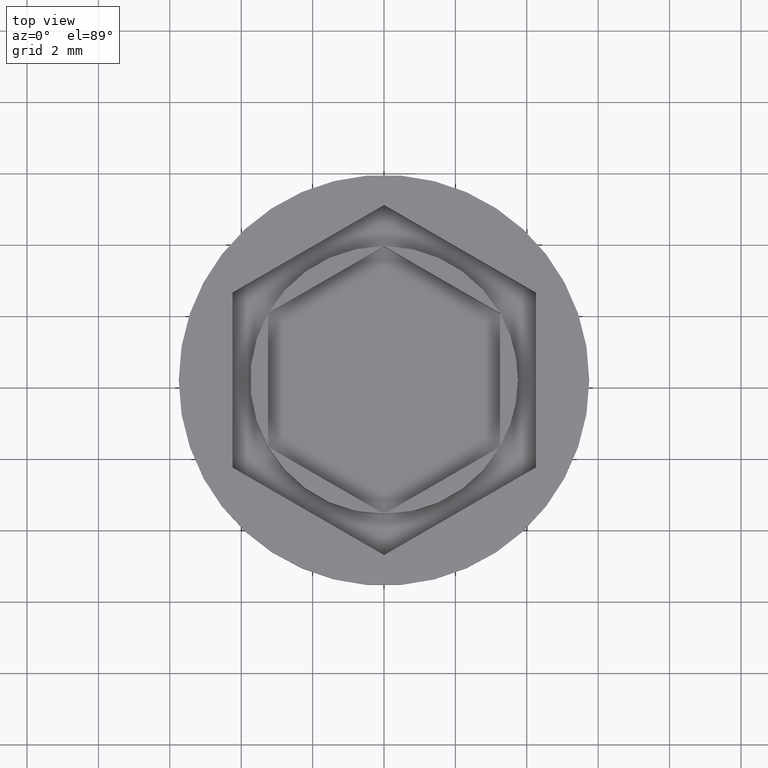
[diagram: clean part render]
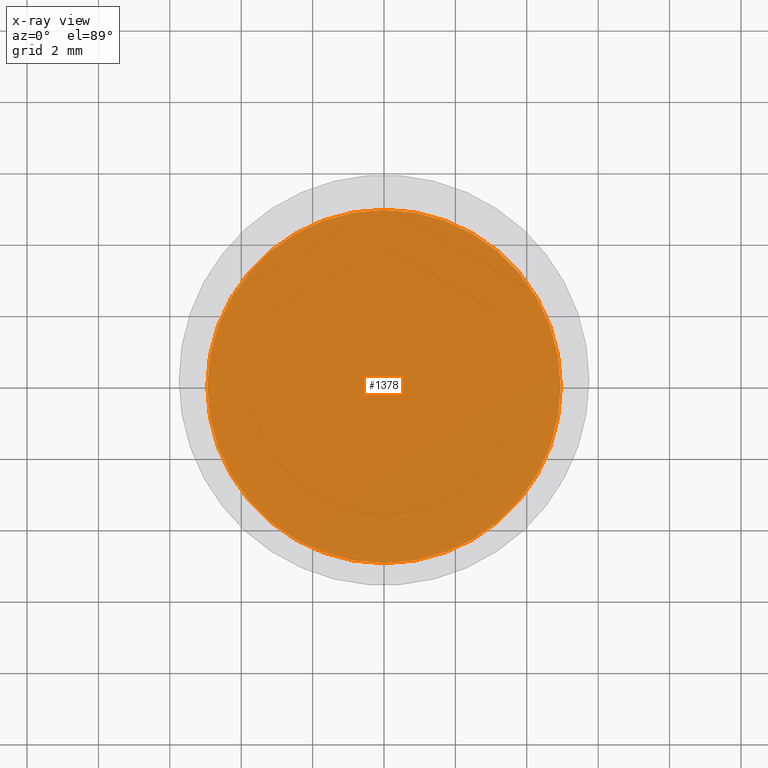
[diagram: x-ray — body ghosted, one internal face saturated and labeled with its STEP entity id]
A machine part, top view, then the same camera in x-ray: the body is ghosted and one INTERNAL B-rep face — a face not visible from any outside direction — is saturated and labeled: STEP entity #1378.
In plain terms, the highlighted planar face has unit normal (0, 0, -1).
Its self-contained STEP definition (entity closure, byte-faithful):
#8 = EDGE_CURVE ( 'NONE', #1725, #911, #746, .T. ) ;
#132 = AXIS2_PLACEMENT_3D ( 'NONE', #1994, #1708, #965 ) ;
#213 = CARTESIAN_POINT ( 'NONE',  ( 4.950000000000001066, 6.245698675651502811E-16, -10.50000000000000000 ) ) ;
#224 = EDGE_CURVE ( 'NONE', #911, #1725, #742, .T. ) ;
#315 = CARTESIAN_POINT ( 'NONE',  ( 0.000000000000000000, 0.000000000000000000, -10.50000000000000000 ) ) ;
#336 = FACE_OUTER_BOUND ( 'NONE', #1104, .T. ) ;
#587 = CARTESIAN_POINT ( 'NONE',  ( -4.950000000000001066, 0.000000000000000000, -10.50000000000000000 ) ) ;
#742 = CIRCLE ( 'NONE', #1865, 4.950000000000001066 ) ;
#746 = CIRCLE ( 'NONE', #132, 4.950000000000001066 ) ;
#911 = VERTEX_POINT ( 'NONE', #213 ) ;
#946 = DIRECTION ( 'NONE',  ( -1.000000000000000000, 0.000000000000000000, -0.000000000000000000 ) ) ;
#960 = DIRECTION ( 'NONE',  ( -0.000000000000000000, -0.000000000000000000, 1.000000000000000000 ) ) ;
#965 = DIRECTION ( 'NONE',  ( -1.000000000000000000, 0.000000000000000000, 0.000000000000000000 ) ) ;
#1104 = EDGE_LOOP ( 'NONE', ( #1809, #1114 ) ) ;
#1114 = ORIENTED_EDGE ( 'NONE', *, *, #224, .T. ) ;
#1252 = DIRECTION ( 'NONE',  ( -1.000000000000000000, 0.000000000000000000, 0.000000000000000000 ) ) ;
#1378 = ADVANCED_FACE ( 'NONE', ( #336 ), #1548, .F. ) ;
#1464 = AXIS2_PLACEMENT_3D ( 'NONE', #315, #1841, #946 ) ;
#1548 = PLANE ( 'NONE',  #1464 ) ;
#1574 = CARTESIAN_POINT ( 'NONE',  ( 0.000000000000000000, 0.000000000000000000, -10.50000000000000000 ) ) ;
#1708 = DIRECTION ( 'NONE',  ( -0.000000000000000000, -0.000000000000000000, 1.000000000000000000 ) ) ;
#1725 = VERTEX_POINT ( 'NONE', #587 ) ;
#1809 = ORIENTED_EDGE ( 'NONE', *, *, #8, .T. ) ;
#1841 = DIRECTION ( 'NONE',  ( 0.000000000000000000, 0.000000000000000000, -1.000000000000000000 ) ) ;
#1865 = AXIS2_PLACEMENT_3D ( 'NONE', #1574, #960, #1252 ) ;
#1994 = CARTESIAN_POINT ( 'NONE',  ( 0.000000000000000000, 0.000000000000000000, -10.50000000000000000 ) ) ;